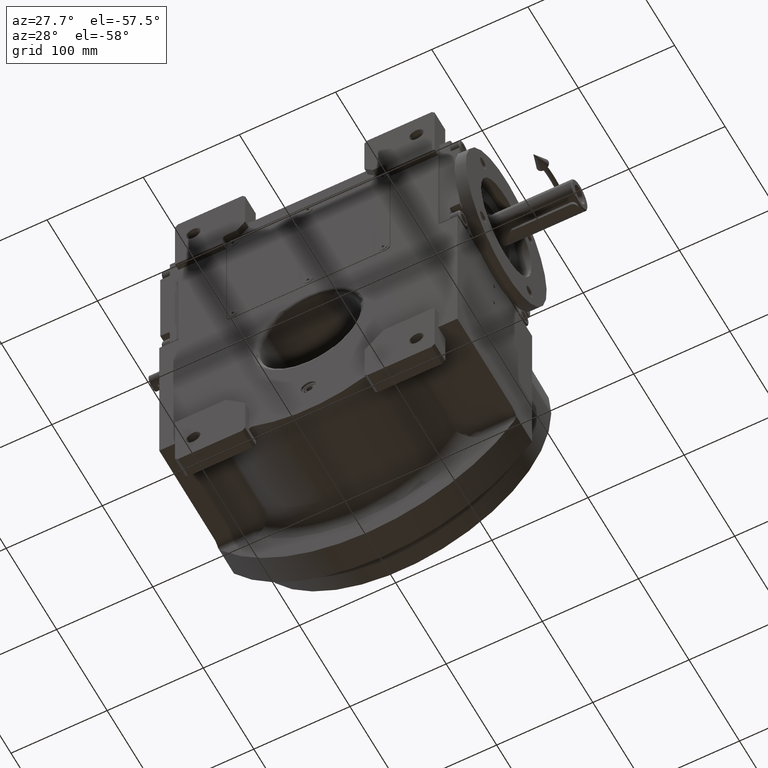
[diagram: clean part render]
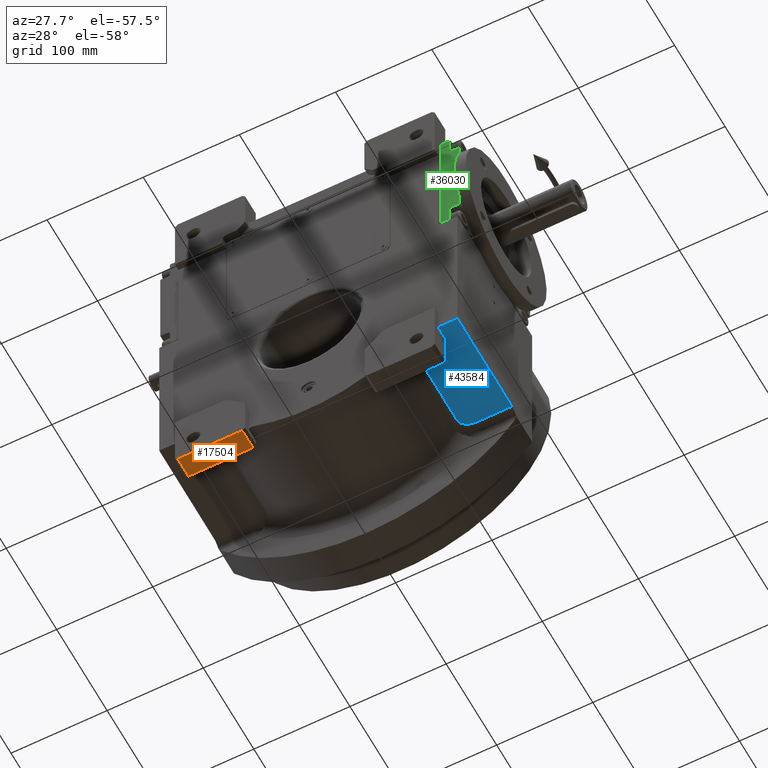
[diagram: same view with three faces highlighted in distinct colors, each labeled with its STEP entity id]
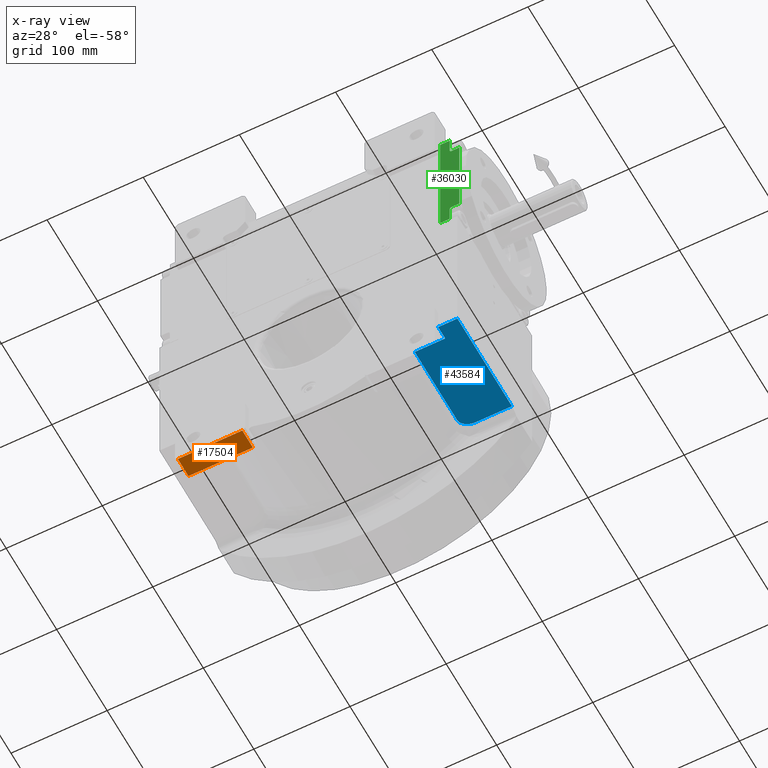
[diagram: x-ray of the same camera — body ghosted, the three highlighted faces saturated]
A machine part, auxiliary view with three faces highlighted in distinct colors.
The next image is the same camera in x-ray (body ghosted, the three faces saturated) — at least one of them is partly hidden behind the body in this view.
Their STEP definitions:

[orange] entity #17504 — the highlighted planar face has unit normal (0, 0, -1).
#3453 = CARTESIAN_POINT ( 'NONE',  ( -132.0000000000000000, -59.00000000000000000, -137.0000000000000000 ) ) ;
#5092 = CARTESIAN_POINT ( 'NONE',  ( -65.00000000000000000, -80.00000000000000000, -137.0000000000000000 ) ) ;
#6409 = CARTESIAN_POINT ( 'NONE',  ( -132.0000000000000000, -80.00000000000000000, -137.0000000000000000 ) ) ;
#8300 = CARTESIAN_POINT ( 'NONE',  ( -132.0000000000000000, -80.00000000000000000, -137.0000000000000000 ) ) ;
#8649 = DIRECTION ( 'NONE',  ( 1.000000000000000000, 0.000000000000000000, 0.000000000000000000 ) ) ;
#9688 = VECTOR ( 'NONE', #69867, 1000.000000000000000 ) ;
#10465 = LINE ( 'NONE', #63594, #68406 ) ;
#14642 = LINE ( 'NONE', #8300, #28647 ) ;
#15692 = CARTESIAN_POINT ( 'NONE',  ( -132.0000000000000000, -59.00000000000000000, -137.0000000000000000 ) ) ;
#17504 = ADVANCED_FACE ( 'NONE', ( #60613 ), #62709, .T. ) ;
#18376 = EDGE_CURVE ( 'NONE', #60597, #29158, #10465, .T. ) ;
#22724 = CARTESIAN_POINT ( 'NONE',  ( -65.00000000000000000, -80.00000000000000000, -137.0000000000000000 ) ) ;
#25354 = ORIENTED_EDGE ( 'NONE', *, *, #18376, .T. ) ;
#26221 = EDGE_CURVE ( 'NONE', #29158, #66503, #48617, .T. ) ;
#28647 = VECTOR ( 'NONE', #8649, 1000.000000000000000 ) ;
#29158 = VERTEX_POINT ( 'NONE', #3453 ) ;
#29465 = ORIENTED_EDGE ( 'NONE', *, *, #38792, .F. ) ;
#37696 = ORIENTED_EDGE ( 'NONE', *, *, #26221, .T. ) ;
#38378 = LINE ( 'NONE', #5092, #48992 ) ;
#38792 = EDGE_CURVE ( 'NONE', #60597, #43723, #14642, .T. ) ;
#38834 = AXIS2_PLACEMENT_3D ( 'NONE', #47123, #57048, #62358 ) ;
#42701 = CARTESIAN_POINT ( 'NONE',  ( -65.00000000000000000, -59.00000000000000000, -137.0000000000000000 ) ) ;
#43723 = VERTEX_POINT ( 'NONE', #22724 ) ;
#47123 = CARTESIAN_POINT ( 'NONE',  ( -135.0000000000000000, -59.00000000000000000, -137.0000000000000000 ) ) ;
#48617 = LINE ( 'NONE', #15692, #9688 ) ;
#48992 = VECTOR ( 'NONE', #58902, 1000.000000000000000 ) ;
#53318 = DIRECTION ( 'NONE',  ( 0.000000000000000000, 1.000000000000000000, 0.000000000000000000 ) ) ;
#56355 = EDGE_CURVE ( 'NONE', #43723, #66503, #38378, .T. ) ;
#56633 = ORIENTED_EDGE ( 'NONE', *, *, #56355, .F. ) ;
#57048 = DIRECTION ( 'NONE',  ( 0.000000000000000000, 0.000000000000000000, -1.000000000000000000 ) ) ;
#58902 = DIRECTION ( 'NONE',  ( 0.000000000000000000, 1.000000000000000000, 0.000000000000000000 ) ) ;
#60597 = VERTEX_POINT ( 'NONE', #6409 ) ;
#60613 = FACE_OUTER_BOUND ( 'NONE', #62130, .T. ) ;
#62130 = EDGE_LOOP ( 'NONE', ( #37696, #56633, #29465, #25354 ) ) ;
#62358 = DIRECTION ( 'NONE',  ( 1.000000000000000000, 0.000000000000000000, 0.000000000000000000 ) ) ;
#62709 = PLANE ( 'NONE',  #38834 ) ;
#63594 = CARTESIAN_POINT ( 'NONE',  ( -132.0000000000000000, -80.00000000000000000, -137.0000000000000000 ) ) ;
#66503 = VERTEX_POINT ( 'NONE', #42701 ) ;
#68406 = VECTOR ( 'NONE', #53318, 1000.000000000000000 ) ;
#69867 = DIRECTION ( 'NONE',  ( 1.000000000000000000, 0.000000000000000000, 0.000000000000000000 ) ) ;

[blue] entity #43584 — the highlighted planar face has unit normal (0, 0, 1).
#118 = CARTESIAN_POINT ( 'NONE',  ( 103.2860106694029980, -59.00000000000000000, -96.00000000000000000 ) ) ;
#788 = CARTESIAN_POINT ( 'NONE',  ( 135.0000000000000000, -73.00000000000000000, -96.00000000000000000 ) ) ;
#2063 = CARTESIAN_POINT ( 'NONE',  ( 116.0970483025350006, 34.99988630677020041, -96.00000000000000000 ) ) ;
#2406 = CARTESIAN_POINT ( 'NONE',  ( 117.1665481270144085, 35.00000000000000000, -96.00000000000000000 ) ) ;
#2648 = VECTOR ( 'NONE', #5536, 1000.000000000000000 ) ;
#4048 = ORIENTED_EDGE ( 'NONE', *, *, #13775, .T. ) ;
#4843 = EDGE_CURVE ( 'NONE', #19692, #28800, #34835, .T. ) ;
#5412 = ORIENTED_EDGE ( 'NONE', *, *, #39191, .T. ) ;
#5485 = VERTEX_POINT ( 'NONE', #32575 ) ;
#5536 = DIRECTION ( 'NONE',  ( 0.000000000000000000, 1.000000000000000000, 0.000000000000000000 ) ) ;
#6009 = VECTOR ( 'NONE', #29148, 1000.000000000000000 ) ;
#7461 = B_SPLINE_CURVE_WITH_KNOTS ( 'NONE', 3,
 ( #39977, #50915, #18356, #55182, #66525, #66863, #44566, #29699, #2063, #2406 ),
 .UNSPECIFIED., .F., .F.,
 ( 4, 1, 1, 1, 1, 1, 1, 4 ),
 ( 0.000000000000000000, 0.1103361437858060012, 0.2306205650528145024, 0.3618368565218019750, 0.5071284336610569765, 0.6649997645452609962, 0.8312744473888740160, 1.000000000000000000 ),
 .UNSPECIFIED. ) ;
#8055 = VECTOR ( 'NONE', #8598, 1000.000000000000000 ) ;
#8598 = DIRECTION ( 'NONE',  ( -1.691768418476434837E-16, 1.000000000000000000, 0.000000000000000000 ) ) ;
#10657 = VECTOR ( 'NONE', #16752, 1000.000000000000000 ) ;
#11040 = DIRECTION ( 'NONE',  ( -1.000000000000000000, 0.000000000000000000, 0.000000000000000000 ) ) ;
#11379 = EDGE_CURVE ( 'NONE', #19692, #61944, #64917, .T. ) ;
#13775 = EDGE_CURVE ( 'NONE', #28800, #5485, #7461, .T. ) ;
#14097 = CARTESIAN_POINT ( 'NONE',  ( 155.0000000000000000, -73.00000000000000000, -96.00000000000000000 ) ) ;
#14799 = CARTESIAN_POINT ( 'NONE',  ( 103.2860106694029980, -59.00000000000000000, -96.00000000000000000 ) ) ;
#15019 = FACE_OUTER_BOUND ( 'NONE', #20545, .T. ) ;
#16630 = VERTEX_POINT ( 'NONE', #14097 ) ;
#16752 = DIRECTION ( 'NONE',  ( 1.000000000000000000, 0.000000000000000000, 0.000000000000000000 ) ) ;
#17393 = EDGE_CURVE ( 'NONE', #5485, #21491, #44698, .T. ) ;
#18356 = CARTESIAN_POINT ( 'NONE',  ( 103.5011898096604028, 27.13477594283720151, -96.00000000000000000 ) ) ;
#19222 = VECTOR ( 'NONE', #11040, 1000.000000000000000 ) ;
#19692 = VERTEX_POINT ( 'NONE', #14799 ) ;
#20545 = EDGE_LOOP ( 'NONE', ( #43180, #56467, #5412, #58160, #30702, #4048, #24861 ) ) ;
#21491 = VERTEX_POINT ( 'NONE', #22170 ) ;
#22170 = CARTESIAN_POINT ( 'NONE',  ( 155.0000000000000000, 35.00000000000000000, -96.00000000000000000 ) ) ;
#23175 = CARTESIAN_POINT ( 'NONE',  ( 135.0000000000000000, -59.00000000000000000, -96.00000000000000000 ) ) ;
#24861 = ORIENTED_EDGE ( 'NONE', *, *, #17393, .T. ) ;
#25260 = CARTESIAN_POINT ( 'NONE',  ( 103.2860102791958070, 24.99999999999110045, -96.00000000058339822 ) ) ;
#25694 = DIRECTION ( 'NONE',  ( -1.000000000000000000, 0.000000000000000000, 0.000000000000000000 ) ) ;
#26257 = AXIS2_PLACEMENT_3D ( 'NONE', #58218, #52918, #25694 ) ;
#27506 = LINE ( 'NONE', #48709, #2648 ) ;
#28800 = VERTEX_POINT ( 'NONE', #25260 ) ;
#29148 = DIRECTION ( 'NONE',  ( 0.000000000000000000, 1.000000000000000000, 0.000000000000000000 ) ) ;
#29699 = CARTESIAN_POINT ( 'NONE',  ( 114.0109502759944036, 34.81726578897210089, -96.00000000000000000 ) ) ;
#30397 = EDGE_CURVE ( 'NONE', #16630, #63644, #69821, .T. ) ;
#30702 = ORIENTED_EDGE ( 'NONE', *, *, #4843, .T. ) ;
#32575 = CARTESIAN_POINT ( 'NONE',  ( 117.1665481270144085, 35.00000000000000000, -96.00000000000000000 ) ) ;
#33726 = DIRECTION ( 'NONE',  ( 1.000000000000000000, 0.000000000000000000, 0.000000000000000000 ) ) ;
#34442 = LINE ( 'NONE', #54627, #6009 ) ;
#34835 = LINE ( 'NONE', #57455, #8055 ) ;
#39191 = EDGE_CURVE ( 'NONE', #63644, #61944, #34442, .T. ) ;
#39977 = CARTESIAN_POINT ( 'NONE',  ( 103.2860102791958070, 24.99999999999110045, -96.00000000058339822 ) ) ;
#43180 = ORIENTED_EDGE ( 'NONE', *, *, #55912, .F. ) ;
#43282 = CARTESIAN_POINT ( 'NONE',  ( 155.0000000000000000, -73.00000000000000000, -96.00000000000000000 ) ) ;
#43584 = ADVANCED_FACE ( 'NONE', ( #15019 ), #52563, .F. ) ;
#44358 = CARTESIAN_POINT ( 'NONE',  ( 117.1665481270144085, 35.00000000000000000, -96.00000000000000000 ) ) ;
#44566 = CARTESIAN_POINT ( 'NONE',  ( 111.0037019574264008, 34.02142560456339737, -96.00000000000000000 ) ) ;
#44698 = LINE ( 'NONE', #44358, #47838 ) ;
#47838 = VECTOR ( 'NONE', #33726, 1000.000000000000000 ) ;
#48709 = CARTESIAN_POINT ( 'NONE',  ( 155.0000000000000000, -73.00000000000000000, -96.00000000000000000 ) ) ;
#50915 = CARTESIAN_POINT ( 'NONE',  ( 103.2967456917183995, 25.71117700569995179, -96.00000000000000000 ) ) ;
#52563 = PLANE ( 'NONE',  #26257 ) ;
#52918 = DIRECTION ( 'NONE',  ( 0.000000000000000000, 0.000000000000000000, 1.000000000000000000 ) ) ;
#54627 = CARTESIAN_POINT ( 'NONE',  ( 135.0000000000000000, -73.00000000000000000, -96.00000000000000000 ) ) ;
#55182 = CARTESIAN_POINT ( 'NONE',  ( 104.4956882985132012, 29.22107301037640070, -96.00000000000000000 ) ) ;
#55912 = EDGE_CURVE ( 'NONE', #16630, #21491, #27506, .T. ) ;
#56467 = ORIENTED_EDGE ( 'NONE', *, *, #30397, .T. ) ;
#57455 = CARTESIAN_POINT ( 'NONE',  ( 103.2860106694029980, -59.00000000000000000, -96.00000000000000000 ) ) ;
#58160 = ORIENTED_EDGE ( 'NONE', *, *, #11379, .F. ) ;
#58218 = CARTESIAN_POINT ( 'NONE',  ( 155.0000000000000000, -73.00000000000000000, -96.00000000000000000 ) ) ;
#61944 = VERTEX_POINT ( 'NONE', #23175 ) ;
#63644 = VERTEX_POINT ( 'NONE', #788 ) ;
#64917 = LINE ( 'NONE', #118, #10657 ) ;
#66525 = CARTESIAN_POINT ( 'NONE',  ( 106.1238245647938072, 31.12724743359949997, -96.00000000000000000 ) ) ;
#66863 = CARTESIAN_POINT ( 'NONE',  ( 108.3276946735049933, 32.76192004499164767, -96.00000000000000000 ) ) ;
#69821 = LINE ( 'NONE', #43282, #19222 ) ;

[green] entity #36030 — the highlighted planar face has unit normal (0, -1, -0).
#275 = CARTESIAN_POINT ( 'NONE',  ( 48.00000000000101608, -12.00000000000106581, 70.00000000000180478 ) ) ;
#1492 = EDGE_CURVE ( 'NONE', #65522, #24162, #50999, .T. ) ;
#2458 = VECTOR ( 'NONE', #60256, 1000.000000000000000 ) ;
#3337 = CIRCLE ( 'NONE', #23882, 2.000000000000001776 ) ;
#4278 = ORIENTED_EDGE ( 'NONE', *, *, #48001, .F. ) ;
#4808 = VECTOR ( 'NONE', #65095, 1000.000000000000000 ) ;
#5062 = CARTESIAN_POINT ( 'NONE',  ( -47.99999999999794653, -19.99999999999893419, 69.99999999999926104 ) ) ;
#5455 = LINE ( 'NONE', #52909, #52810 ) ;
#5806 = DIRECTION ( 'NONE',  ( -2.428612866367529932E-14, 1.000000000000000000, 0.000000000000000000 ) ) ;
#7990 = FACE_OUTER_BOUND ( 'NONE', #46148, .T. ) ;
#8270 = EDGE_CURVE ( 'NONE', #24162, #60809, #3337, .T. ) ;
#8603 = CARTESIAN_POINT ( 'NONE',  ( -47.99999999999794653, -11.99999999999895550, 69.99999999999926104 ) ) ;
#8859 = CARTESIAN_POINT ( 'NONE',  ( 48.00000000000101608, -20.00000000000104450, 70.00000000000180478 ) ) ;
#10359 = VERTEX_POINT ( 'NONE', #49506 ) ;
#10712 = DIRECTION ( 'NONE',  ( 2.320366121466571174E-14, -1.000000000000000000, 1.110223024626209423E-16 ) ) ;
#12618 = VECTOR ( 'NONE', #67656, 1000.000000000000000 ) ;
#13207 = VERTEX_POINT ( 'NONE', #16684 ) ;
#13946 = ORIENTED_EDGE ( 'NONE', *, *, #61698, .F. ) ;
#15410 = VECTOR ( 'NONE', #10712, 1000.000000000000000 ) ;
#16104 = EDGE_CURVE ( 'NONE', #17329, #65522, #55294, .T. ) ;
#16124 = ORIENTED_EDGE ( 'NONE', *, *, #8270, .T. ) ;
#16416 = CARTESIAN_POINT ( 'NONE',  ( -49.99999999999794653, -11.99999999999895550, 69.99999999999926104 ) ) ;
#16684 = CARTESIAN_POINT ( 'NONE',  ( 67.00000000000103739, -2.109423746787797427E-12, 70.00000000000206057 ) ) ;
#16734 = LINE ( 'NONE', #54956, #15410 ) ;
#16774 = AXIS2_PLACEMENT_3D ( 'NONE', #16416, #21758, #5806 ) ;
#17074 = CARTESIAN_POINT ( 'NONE',  ( -47.99999999999794653, -19.99999999999893419, 69.99999999999926104 ) ) ;
#17120 = ORIENTED_EDGE ( 'NONE', *, *, #1492, .T. ) ;
#17329 = VERTEX_POINT ( 'NONE', #5062 ) ;
#20201 = VERTEX_POINT ( 'NONE', #58970 ) ;
#21758 = DIRECTION ( 'NONE',  ( -2.342570581959080616E-14, 1.110223024629687314E-16, -1.000000000000000000 ) ) ;
#23005 = AXIS2_PLACEMENT_3D ( 'NONE', #56495, #29272, #51186 ) ;
#23295 = EDGE_CURVE ( 'NONE', #10359, #34308, #37328, .T. ) ;
#23882 = AXIS2_PLACEMENT_3D ( 'NONE', #31214, #69065, #37206 ) ;
#23960 = LINE ( 'NONE', #25016, #50568 ) ;
#24162 = VERTEX_POINT ( 'NONE', #275 ) ;
#25016 = CARTESIAN_POINT ( 'NONE',  ( -47.99999999999794653, -19.99999999999893419, 69.99999999999926104 ) ) ;
#25335 = CARTESIAN_POINT ( 'NONE',  ( -66.99999999999847944, -9.999999999998953726, 69.99999999999847944 ) ) ;
#25606 = VECTOR ( 'NONE', #39237, 1000.000000000000000 ) ;
#26895 = LINE ( 'NONE', #48448, #4808 ) ;
#27212 = CARTESIAN_POINT ( 'NONE',  ( 67.00000000000103739, -10.00000000000211742, 70.00000000000206057 ) ) ;
#27463 = EDGE_CURVE ( 'NONE', #13207, #65583, #5455, .T. ) ;
#28611 = EDGE_CURVE ( 'NONE', #34308, #52469, #47293, .T. ) ;
#29272 = DIRECTION ( 'NONE',  ( -2.342570581959082509E-14, -1.110223024618816071E-16, 1.000000000000000000 ) ) ;
#31214 = CARTESIAN_POINT ( 'NONE',  ( 50.00000000000101608, -12.00000000000106581, 70.00000000000127898 ) ) ;
#34308 = VERTEX_POINT ( 'NONE', #44559 ) ;
#35784 = CARTESIAN_POINT ( 'NONE',  ( 50.00000000000101608, -10.00000000000106404, 70.00000000000127898 ) ) ;
#35976 = DIRECTION ( 'NONE',  ( -2.320366121466571174E-14, 1.000000000000000000, -1.110223024626209423E-16 ) ) ;
#36030 = ADVANCED_FACE ( 'NONE', ( #7990 ), #62856, .T. ) ;
#36989 = DIRECTION ( 'NONE',  ( 1.000000000000000000, -2.320366121466579378E-14, 2.342570581959082194E-14 ) ) ;
#37206 = DIRECTION ( 'NONE',  ( -1.000000000000000000, 2.255140518769847329E-14, -2.081668171172166620E-14 ) ) ;
#37328 = LINE ( 'NONE', #25335, #55205 ) ;
#38088 = EDGE_CURVE ( 'NONE', #20201, #13207, #26895, .T. ) ;
#39237 = DIRECTION ( 'NONE',  ( -1.000000000000000000, 2.320366121466579378E-14, -2.342570581959082194E-14 ) ) ;
#44559 = CARTESIAN_POINT ( 'NONE',  ( -49.99999999999899103, -9.999999999998953726, 69.99999999999926104 ) ) ;
#46148 = EDGE_LOOP ( 'NONE', ( #53094, #67448, #13946, #51865, #17120, #16124, #4278, #64030, #68919, #55292 ) ) ;
#47293 = CIRCLE ( 'NONE', #16774, 2.000000000000000000 ) ;
#48001 = EDGE_CURVE ( 'NONE', #65583, #60809, #65778, .T. ) ;
#48448 = CARTESIAN_POINT ( 'NONE',  ( -66.99999999999847944, 1.054711873393898713E-12, 69.99999999999847944 ) ) ;
#48909 = EDGE_CURVE ( 'NONE', #20201, #10359, #16734, .T. ) ;
#49506 = CARTESIAN_POINT ( 'NONE',  ( -66.99999999999847944, -9.999999999998953726, 69.99999999999847944 ) ) ;
#50568 = VECTOR ( 'NONE', #35976, 1000.000000000000000 ) ;
#50999 = LINE ( 'NONE', #8859, #12618 ) ;
#51186 = DIRECTION ( 'NONE',  ( 1.000000000000000000, -2.320366121466579378E-14, 2.342570581959082194E-14 ) ) ;
#51865 = ORIENTED_EDGE ( 'NONE', *, *, #16104, .T. ) ;
#52469 = VERTEX_POINT ( 'NONE', #8603 ) ;
#52810 = VECTOR ( 'NONE', #59242, 1000.000000000000000 ) ;
#52909 = CARTESIAN_POINT ( 'NONE',  ( 67.00000000000103739, -2.109423746787797427E-12, 70.00000000000206057 ) ) ;
#53094 = ORIENTED_EDGE ( 'NONE', *, *, #23295, .T. ) ;
#54956 = CARTESIAN_POINT ( 'NONE',  ( -66.99999999999847944, 1.054711873393898713E-12, 69.99999999999847944 ) ) ;
#55205 = VECTOR ( 'NONE', #36989, 1000.000000000000000 ) ;
#55292 = ORIENTED_EDGE ( 'NONE', *, *, #48909, .T. ) ;
#55294 = LINE ( 'NONE', #17074, #2458 ) ;
#56495 = CARTESIAN_POINT ( 'NONE',  ( -69.99999999999847944, 1.054711873393898713E-12, 69.99999999999847944 ) ) ;
#56963 = CARTESIAN_POINT ( 'NONE',  ( 67.00000000000103739, -10.00000000000211742, 70.00000000000206057 ) ) ;
#58970 = CARTESIAN_POINT ( 'NONE',  ( -66.99999999999847944, 1.054711873393898713E-12, 69.99999999999847944 ) ) ;
#59242 = DIRECTION ( 'NONE',  ( 2.320366121466571174E-14, -1.000000000000000000, 1.110223024626209423E-16 ) ) ;
#60256 = DIRECTION ( 'NONE',  ( 1.000000000000000000, -2.320366121466579378E-14, 2.342570581959082194E-14 ) ) ;
#60809 = VERTEX_POINT ( 'NONE', #35784 ) ;
#60886 = CARTESIAN_POINT ( 'NONE',  ( 48.00000000000101608, -20.00000000000104450, 70.00000000000180478 ) ) ;
#61698 = EDGE_CURVE ( 'NONE', #17329, #52469, #23960, .T. ) ;
#62856 = PLANE ( 'NONE',  #23005 ) ;
#64030 = ORIENTED_EDGE ( 'NONE', *, *, #27463, .F. ) ;
#65095 = DIRECTION ( 'NONE',  ( 1.000000000000000000, -2.320366121466579378E-14, 2.342570581959082194E-14 ) ) ;
#65522 = VERTEX_POINT ( 'NONE', #60886 ) ;
#65583 = VERTEX_POINT ( 'NONE', #56963 ) ;
#65778 = LINE ( 'NONE', #27212, #25606 ) ;
#67448 = ORIENTED_EDGE ( 'NONE', *, *, #28611, .T. ) ;
#67656 = DIRECTION ( 'NONE',  ( -2.320366121466571174E-14, 1.000000000000000000, -1.110223024626209423E-16 ) ) ;
#68919 = ORIENTED_EDGE ( 'NONE', *, *, #38088, .F. ) ;
#69065 = DIRECTION ( 'NONE',  ( -2.342570581959080616E-14, 1.110223024629687314E-16, -1.000000000000000000 ) ) ;